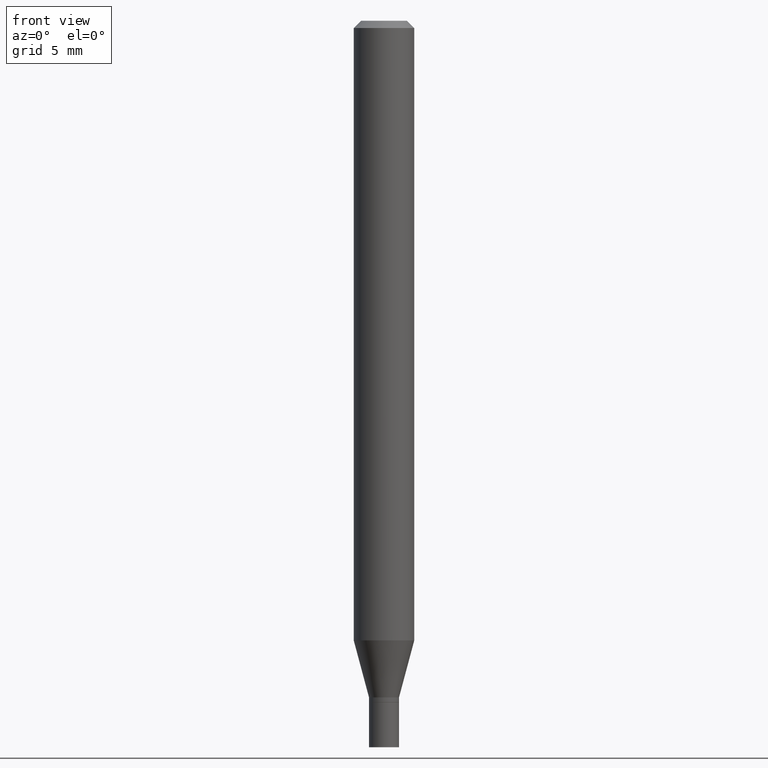
[diagram: clean part render]
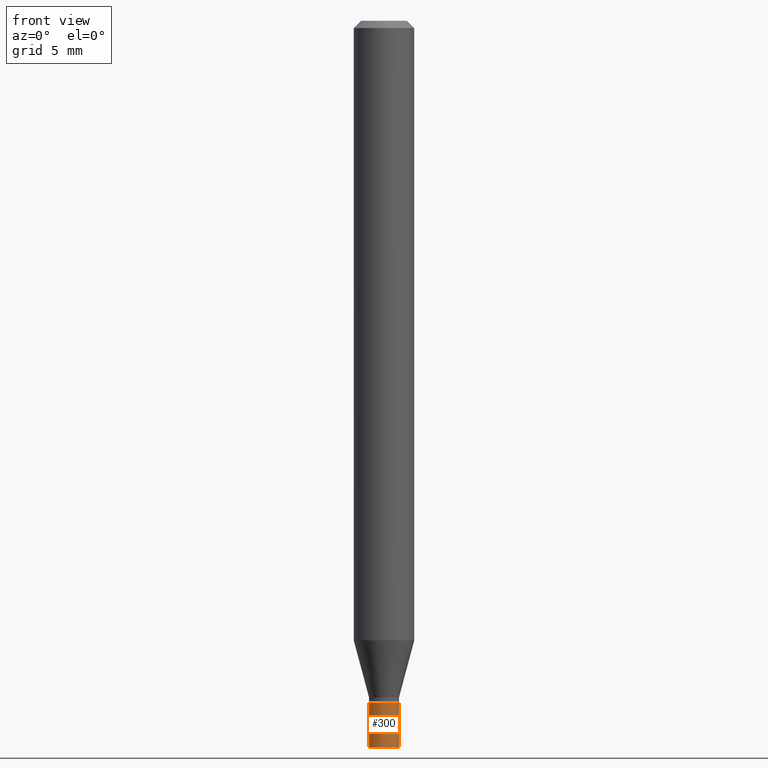
[diagram: same view with one face highlighted and labeled with its STEP entity id]
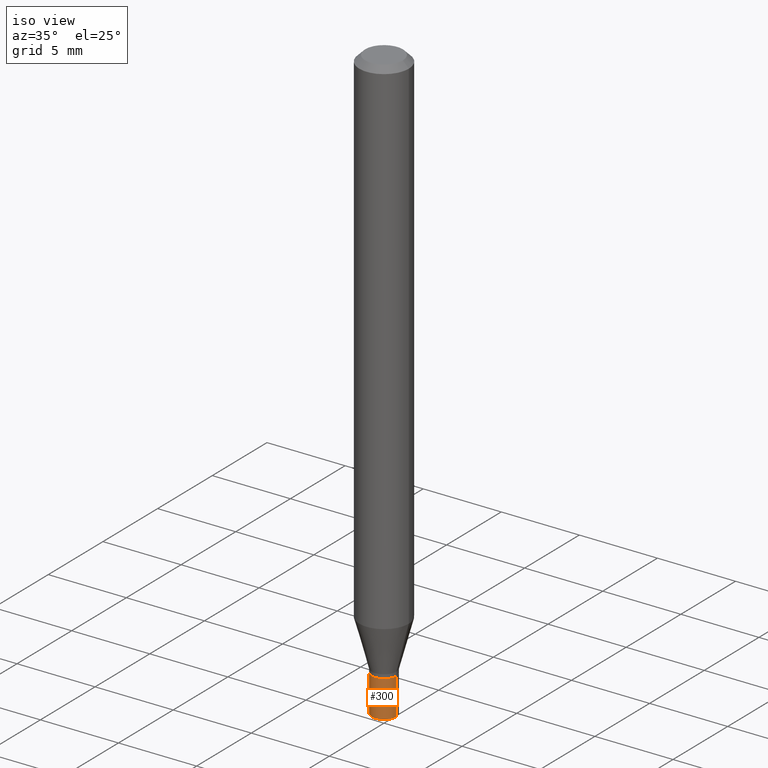
[diagram: same view with one face highlighted and labeled with its STEP entity id]
A machine part, front view. The second image highlights one B-rep face of the part: STEP entity #300.
A second angle (iso view) of the same face is appended — the face is thin or edge-on in the first view.
In plain terms, the highlighted cylindrical surface (edge-blend (fillet) strip) has radius 0.7874 mm, axis along (-0, 0, 1).
Its self-contained STEP definition (entity closure, byte-faithful):
#6 = CARTESIAN_POINT ( 'NONE',  ( 3.668203209277704895E-29, -5.237222008264718177E-15, -1.500000000000000222 ) ) ;
#9 = VERTEX_POINT ( 'NONE', #192 ) ;
#21 = VERTEX_POINT ( 'NONE', #229 ) ;
#25 = DIRECTION ( 'NONE',  ( 1.000000000000000000, -6.982962677686266711E-15, 4.876176775795935232E-29 ) ) ;
#29 = CARTESIAN_POINT ( 'NONE',  ( 0.03099999999999999978, -2.164718430082742572E-16, 1.511614800496739984E-30 ) ) ;
#33 = CARTESIAN_POINT ( 'NONE',  ( -0.03099999999999999978, -4.854599877922879992E-15, -1.500000000000000222 ) ) ;
#37 = LINE ( 'NONE', #102, #450 ) ;
#44 = ORIENTED_EDGE ( 'NONE', *, *, #146, .F. ) ;
#45 = DIRECTION ( 'NONE',  ( -2.445468806185136597E-29, 3.491481338843145583E-15, 1.000000000000000000 ) ) ;
#57 = DIRECTION ( 'NONE',  ( -2.445468806185136597E-29, 3.491481338843145583E-15, 1.000000000000000000 ) ) ;
#93 = CARTESIAN_POINT ( 'NONE',  ( -0.03099999999999999978, -4.854599877922879992E-15, -1.407000000000000028 ) ) ;
#102 = CARTESIAN_POINT ( 'NONE',  ( -0.03099999999999999978, 2.202682480856310560E-16, -1.524869877979020612E-30 ) ) ;
#133 = LINE ( 'NONE', #29, #451 ) ;
#142 = DIRECTION ( 'NONE',  ( -2.445468806185136597E-29, 3.491481338843145583E-15, 1.000000000000000000 ) ) ;
#146 = EDGE_CURVE ( 'NONE', #297, #9, #432, .T. ) ;
#148 = ORIENTED_EDGE ( 'NONE', *, *, #324, .F. ) ;
#185 = EDGE_CURVE ( 'NONE', #335, #21, #387, .T. ) ;
#192 = CARTESIAN_POINT ( 'NONE',  ( 0.03099999999999999978, -5.128986086760580222E-15, -1.407000000000000028 ) ) ;
#193 = DIRECTION ( 'NONE',  ( 1.000000000000000000, -6.982962677686270655E-15, 0.000000000000000000 ) ) ;
#194 = FACE_OUTER_BOUND ( 'NONE', #430, .T. ) ;
#226 = EDGE_CURVE ( 'NONE', #21, #9, #133, .T. ) ;
#229 = CARTESIAN_POINT ( 'NONE',  ( 0.03099999999999999978, -5.453693851272993297E-15, -1.500000000000000222 ) ) ;
#232 = AXIS2_PLACEMENT_3D ( 'NONE', #270, #57, #25 ) ;
#270 = CARTESIAN_POINT ( 'NONE',  ( 0.000000000000000000, 0.000000000000000000, 0.000000000000000000 ) ) ;
#288 = AXIS2_PLACEMENT_3D ( 'NONE', #6, #142, #193 ) ;
#292 = DIRECTION ( 'NONE',  ( 1.000000000000000000, -6.982962677686270655E-15, 0.000000000000000000 ) ) ;
#293 = CYLINDRICAL_SURFACE ( 'NONE', #232, 0.03099999999999999978 ) ;
#294 = CARTESIAN_POINT ( 'NONE',  ( 3.440774610302487541E-29, -4.912514243752305891E-15, -1.407000000000000028 ) ) ;
#297 = VERTEX_POINT ( 'NONE', #93 ) ;
#300 = ADVANCED_FACE ( 'NONE', ( #194 ), #293, .T. ) ;
#324 = EDGE_CURVE ( 'NONE', #335, #297, #37, .T. ) ;
#330 = DIRECTION ( 'NONE',  ( -2.445468806185136877E-29, 3.491481338843145188E-15, 1.000000000000000000 ) ) ;
#335 = VERTEX_POINT ( 'NONE', #33 ) ;
#375 = ORIENTED_EDGE ( 'NONE', *, *, #185, .T. ) ;
#387 = CIRCLE ( 'NONE', #288, 0.03099999999999999978 ) ;
#430 = EDGE_LOOP ( 'NONE', ( #148, #375, #447, #44 ) ) ;
#432 = CIRCLE ( 'NONE', #443, 0.03099999999999999978 ) ;
#443 = AXIS2_PLACEMENT_3D ( 'NONE', #294, #45, #292 ) ;
#447 = ORIENTED_EDGE ( 'NONE', *, *, #226, .T. ) ;
#450 = VECTOR ( 'NONE', #465, 39.37007874015748143 ) ;
#451 = VECTOR ( 'NONE', #330, 39.37007874015748143 ) ;
#465 = DIRECTION ( 'NONE',  ( -2.445468806185136877E-29, 3.491481338843145188E-15, 1.000000000000000000 ) ) ;